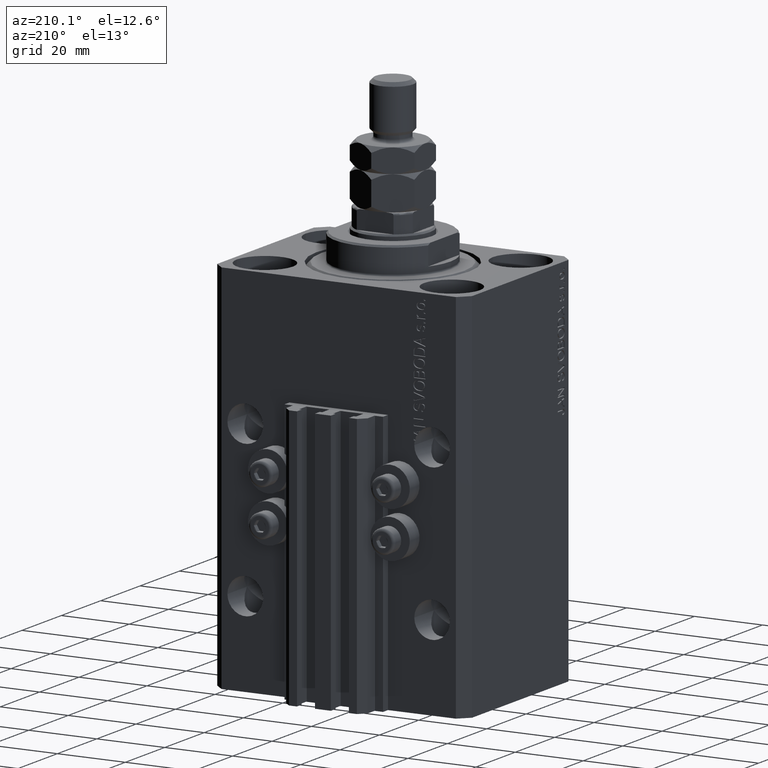
[diagram: clean part render]
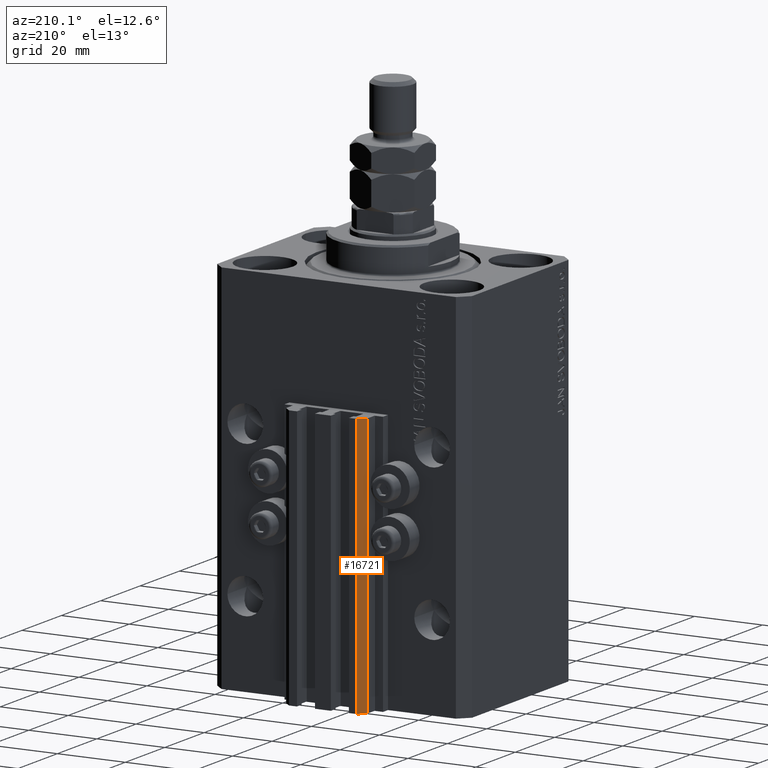
[diagram: same view with one face highlighted and labeled with its STEP entity id]
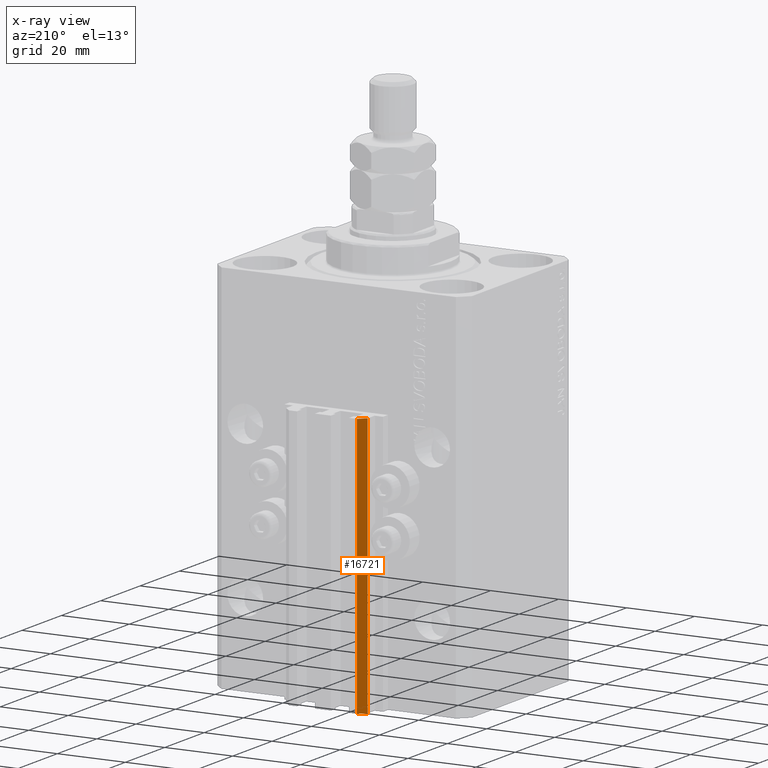
[diagram: x-ray of the same camera — body ghosted, the highlighted face saturated]
A machine part, auxiliary view. The second image highlights one B-rep face of the part: STEP entity #16721.
The next image is the same camera in x-ray: the body ghosted, the highlighted face saturated — about 0% of this face is hidden behind the body in this view.
In plain terms, the highlighted planar face has unit normal (-0.7071, 0.7071, 0).
Its self-contained STEP definition (entity closure, byte-faithful):
#572 = VERTEX_POINT ( 'NONE', #12496 ) ;
#749 = LINE ( 'NONE', #4717, #3447 ) ;
#1384 = EDGE_CURVE ( 'NONE', #2475, #572, #749, .T. ) ;
#1742 = AXIS2_PLACEMENT_3D ( 'NONE', #4537, #23823, #27285 ) ;
#2475 = VERTEX_POINT ( 'NONE', #21585 ) ;
#2940 = CARTESIAN_POINT ( 'NONE',  ( -10.00000000000000000, 35.50000000000000000, -33.00000000000000000 ) ) ;
#3447 = VECTOR ( 'NONE', #16337, 1000.000000000000000 ) ;
#4537 = CARTESIAN_POINT ( 'NONE',  ( -10.00000000000000000, 35.50000000000000000, -110.0000000000000000 ) ) ;
#4717 = CARTESIAN_POINT ( 'NONE',  ( -12.00000000000000000, 33.49999999999998579, -110.0000000000000000 ) ) ;
#4964 = EDGE_CURVE ( 'NONE', #15028, #572, #24753, .T. ) ;
#5959 = DIRECTION ( 'NONE',  ( -0.7071067811865460184, -0.7071067811865490160, 0.000000000000000000 ) ) ;
#7096 = LINE ( 'NONE', #22186, #27777 ) ;
#9030 = DIRECTION ( 'NONE',  ( -0.7071067811865460184, -0.7071067811865490160, 0.000000000000000000 ) ) ;
#9989 = LINE ( 'NONE', #24591, #21097 ) ;
#10220 = VERTEX_POINT ( 'NONE', #38951 ) ;
#12496 = CARTESIAN_POINT ( 'NONE',  ( -12.00000000000000000, 33.49999999999998579, -33.00000000000000000 ) ) ;
#13066 = VECTOR ( 'NONE', #5959, 1000.000000000000227 ) ;
#15028 = VERTEX_POINT ( 'NONE', #2940 ) ;
#15395 = EDGE_CURVE ( 'NONE', #10220, #2475, #7096, .T. ) ;
#16337 = DIRECTION ( 'NONE',  ( 0.000000000000000000, 0.000000000000000000, 1.000000000000000000 ) ) ;
#16721 = ADVANCED_FACE ( 'NONE', ( #19873 ), #42399, .T. ) ;
#19316 = ORIENTED_EDGE ( 'NONE', *, *, #15395, .T. ) ;
#19873 = FACE_OUTER_BOUND ( 'NONE', #22162, .T. ) ;
#21097 = VECTOR ( 'NONE', #47371, 1000.000000000000000 ) ;
#21585 = CARTESIAN_POINT ( 'NONE',  ( -12.00000000000000000, 33.49999999999998579, -110.0000000000000000 ) ) ;
#22162 = EDGE_LOOP ( 'NONE', ( #29846, #30663, #19316, #46282 ) ) ;
#22186 = CARTESIAN_POINT ( 'NONE',  ( -10.00000000000000000, 35.50000000000000000, -110.0000000000000000 ) ) ;
#23823 = DIRECTION ( 'NONE',  ( -0.7071067811865490160, 0.7071067811865461294, 0.000000000000000000 ) ) ;
#24591 = CARTESIAN_POINT ( 'NONE',  ( -10.00000000000000000, 35.50000000000000000, -110.0000000000000000 ) ) ;
#24753 = LINE ( 'NONE', #43819, #13066 ) ;
#27285 = DIRECTION ( 'NONE',  ( -0.7071067811865460184, -0.7071067811865489050, 0.000000000000000000 ) ) ;
#27777 = VECTOR ( 'NONE', #9030, 1000.000000000000227 ) ;
#29846 = ORIENTED_EDGE ( 'NONE', *, *, #4964, .F. ) ;
#30638 = EDGE_CURVE ( 'NONE', #10220, #15028, #9989, .T. ) ;
#30663 = ORIENTED_EDGE ( 'NONE', *, *, #30638, .F. ) ;
#38951 = CARTESIAN_POINT ( 'NONE',  ( -10.00000000000000000, 35.50000000000000000, -110.0000000000000000 ) ) ;
#42399 = PLANE ( 'NONE',  #1742 ) ;
#43819 = CARTESIAN_POINT ( 'NONE',  ( -10.00000000000000000, 35.50000000000000000, -33.00000000000000000 ) ) ;
#46282 = ORIENTED_EDGE ( 'NONE', *, *, #1384, .T. ) ;
#47371 = DIRECTION ( 'NONE',  ( 0.000000000000000000, 0.000000000000000000, 1.000000000000000000 ) ) ;